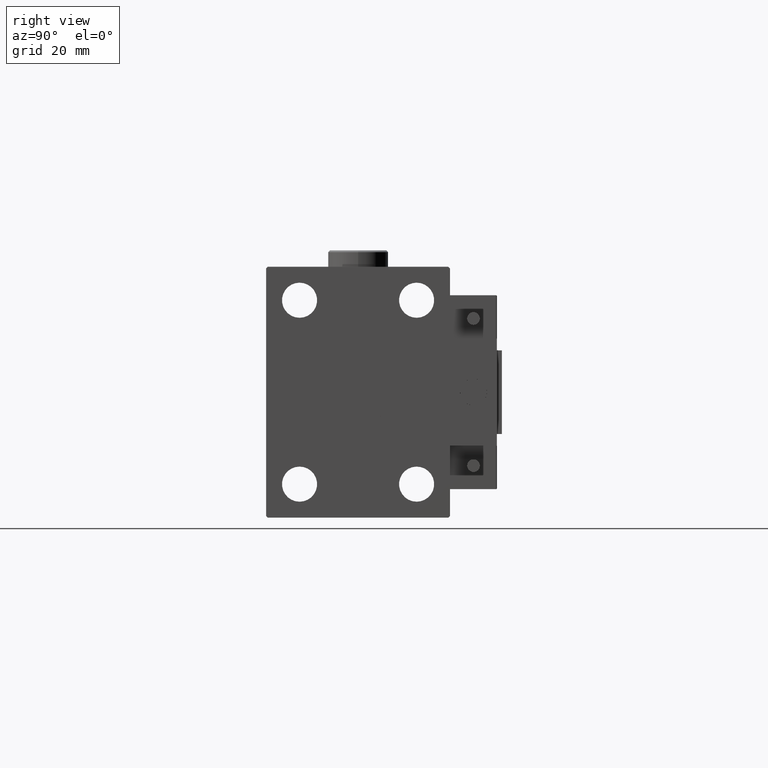
[diagram: clean part render]
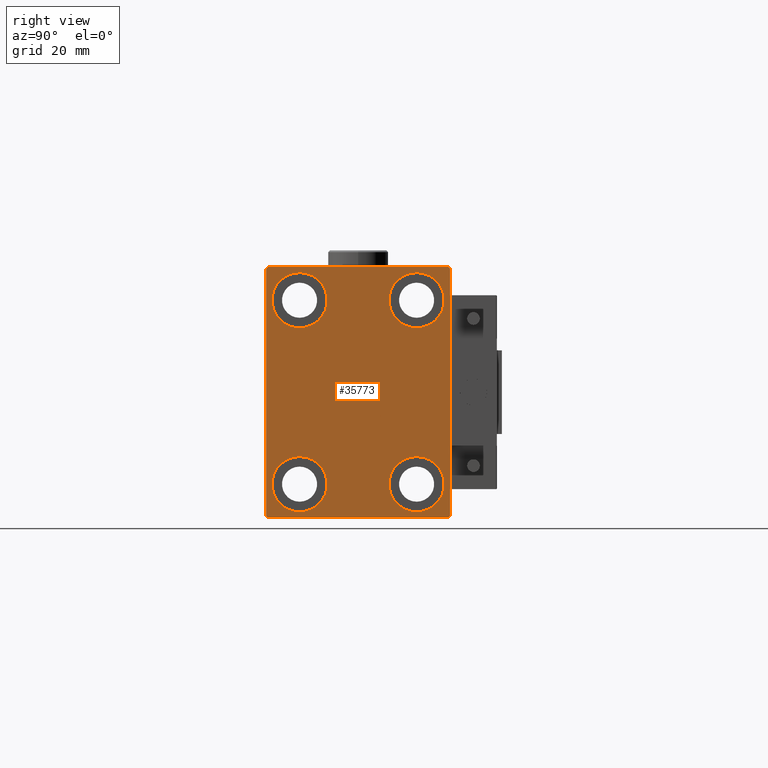
[diagram: same view with one face highlighted and labeled with its STEP entity id]
A machine part, right view. The second image highlights one B-rep face of the part: STEP entity #35773.
In plain terms, the highlighted planar face has unit normal (1, 0, 0).
Its self-contained STEP definition (entity closure, byte-faithful):
#100 = VERTEX_POINT ( 'NONE', #27171 ) ;
#151 = EDGE_CURVE ( 'NONE', #29995, #11162, #40310, .T. ) ;
#279 = DIRECTION ( 'NONE',  ( 0.000000000000000000, 0.000000000000000000, 1.000000000000000000 ) ) ;
#964 = VERTEX_POINT ( 'NONE', #47185 ) ;
#1415 = DIRECTION ( 'NONE',  ( 0.000000000000000000, 1.000000000000000000, 0.000000000000000000 ) ) ;
#1444 = ORIENTED_EDGE ( 'NONE', *, *, #19061, .T. ) ;
#1695 = AXIS2_PLACEMENT_3D ( 'NONE', #39116, #33170, #30351 ) ;
#2394 = CIRCLE ( 'NONE', #33927, 8.249999999999992895 ) ;
#2591 = VECTOR ( 'NONE', #33118, 1000.000000000000114 ) ;
#2593 = DIRECTION ( 'NONE',  ( 0.000000000000000000, -9.251858538542970348E-17, 1.000000000000000000 ) ) ;
#3353 = CARTESIAN_POINT ( 'NONE',  ( 65.00000000000000000, -17.50000000000000355, -27.50000000000000355 ) ) ;
#3519 = CARTESIAN_POINT ( 'NONE',  ( 65.00000000000000000, 17.49999999999999645, -27.50000000000000355 ) ) ;
#3557 = CARTESIAN_POINT ( 'NONE',  ( 65.00000000000000000, -17.50000000000000355, -19.25000000000000355 ) ) ;
#4406 = DIRECTION ( 'NONE',  ( 0.000000000000000000, 0.000000000000000000, 1.000000000000000000 ) ) ;
#4490 = FACE_BOUND ( 'NONE', #46812, .T. ) ;
#5020 = CARTESIAN_POINT ( 'NONE',  ( 65.00000000000000000, 0.000000000000000000, 0.000000000000000000 ) ) ;
#6458 = CIRCLE ( 'NONE', #27489, 8.250000000000000000 ) ;
#6524 = CIRCLE ( 'NONE', #52069, 8.250000000000000000 ) ;
#6875 = AXIS2_PLACEMENT_3D ( 'NONE', #11172, #19675, #31491 ) ;
#6967 = VERTEX_POINT ( 'NONE', #36545 ) ;
#7273 = CIRCLE ( 'NONE', #37946, 8.250000000000000000 ) ;
#7817 = CARTESIAN_POINT ( 'NONE',  ( 65.00000000000000000, 27.49999999999999645, 37.50000000000000711 ) ) ;
#8013 = DIRECTION ( 'NONE',  ( 0.000000000000000000, 0.000000000000000000, 1.000000000000000000 ) ) ;
#8962 = EDGE_CURVE ( 'NONE', #12217, #50672, #28788, .T. ) ;
#9055 = DIRECTION ( 'NONE',  ( -1.000000000000000000, -0.000000000000000000, -0.000000000000000000 ) ) ;
#9580 = LINE ( 'NONE', #25775, #23724 ) ;
#9935 = LINE ( 'NONE', #30255, #42887 ) ;
#10099 = EDGE_CURVE ( 'NONE', #100, #51855, #42862, .T. ) ;
#10569 = LINE ( 'NONE', #26774, #24045 ) ;
#10688 = CARTESIAN_POINT ( 'NONE',  ( 65.00000000000000000, -27.50000000000000355, 37.50000000000000000 ) ) ;
#10857 = EDGE_LOOP ( 'NONE', ( #29290, #37271 ) ) ;
#10941 = CARTESIAN_POINT ( 'NONE',  ( 65.00000000000000000, -27.50000000000000355, 37.00000000000001421 ) ) ;
#11162 = VERTEX_POINT ( 'NONE', #50641 ) ;
#11172 = CARTESIAN_POINT ( 'NONE',  ( 65.00000000000000000, 17.50000000000000355, 27.49999999999999645 ) ) ;
#11228 = ORIENTED_EDGE ( 'NONE', *, *, #41027, .T. ) ;
#12217 = VERTEX_POINT ( 'NONE', #33189 ) ;
#12705 = PLANE ( 'NONE',  #31945 ) ;
#13099 = LINE ( 'NONE', #13626, #20767 ) ;
#13176 = ORIENTED_EDGE ( 'NONE', *, *, #23214, .T. ) ;
#13227 = CARTESIAN_POINT ( 'NONE',  ( 65.00000000000000000, 32.25000000000019185, 32.24999999999975131 ) ) ;
#13321 = DIRECTION ( 'NONE',  ( 0.000000000000000000, 0.000000000000000000, 1.000000000000000000 ) ) ;
#13506 = DIRECTION ( 'NONE',  ( 1.000000000000000000, 0.000000000000000000, 0.000000000000000000 ) ) ;
#13612 = CARTESIAN_POINT ( 'NONE',  ( 65.00000000000000000, -17.49999999999999645, 19.25000000000000000 ) ) ;
#13626 = CARTESIAN_POINT ( 'NONE',  ( 65.00000000000000000, -32.25000000000000000, -32.25000000000000000 ) ) ;
#13783 = DIRECTION ( 'NONE',  ( 0.000000000000000000, 0.000000000000000000, -1.000000000000000000 ) ) ;
#13920 = VERTEX_POINT ( 'NONE', #32208 ) ;
#14164 = VERTEX_POINT ( 'NONE', #47243 ) ;
#15239 = VERTEX_POINT ( 'NONE', #43162 ) ;
#15725 = CARTESIAN_POINT ( 'NONE',  ( 65.00000000000000000, 17.49999999999999645, -19.25000000000000355 ) ) ;
#16000 = EDGE_CURVE ( 'NONE', #38686, #14164, #17119, .T. ) ;
#16381 = LINE ( 'NONE', #19696, #2591 ) ;
#16830 = EDGE_CURVE ( 'NONE', #964, #15239, #9580, .T. ) ;
#17119 = LINE ( 'NONE', #7817, #18419 ) ;
#17604 = DIRECTION ( 'NONE',  ( -0.000000000000000000, -0.7071067811865426878, 0.7071067811865524577 ) ) ;
#18419 = VECTOR ( 'NONE', #41537, 1000.000000000000000 ) ;
#18575 = VERTEX_POINT ( 'NONE', #3557 ) ;
#18647 = ORIENTED_EDGE ( 'NONE', *, *, #41582, .T. ) ;
#19061 = EDGE_CURVE ( 'NONE', #18575, #6967, #7273, .T. ) ;
#19675 = DIRECTION ( 'NONE',  ( -1.000000000000000000, -0.000000000000000000, -0.000000000000000000 ) ) ;
#19696 = CARTESIAN_POINT ( 'NONE',  ( 65.00000000000000000, -32.25000000000000711, 32.25000000000000711 ) ) ;
#20767 = VECTOR ( 'NONE', #29300, 1000.000000000000114 ) ;
#21226 = FACE_OUTER_BOUND ( 'NONE', #40676, .T. ) ;
#21693 = ORIENTED_EDGE ( 'NONE', *, *, #29650, .T. ) ;
#21773 = EDGE_CURVE ( 'NONE', #15239, #13920, #10569, .T. ) ;
#22880 = EDGE_CURVE ( 'NONE', #23051, #964, #9935, .T. ) ;
#23051 = VERTEX_POINT ( 'NONE', #43449 ) ;
#23214 = EDGE_CURVE ( 'NONE', #13920, #38686, #29168, .T. ) ;
#23724 = VECTOR ( 'NONE', #26325, 1000.000000000000114 ) ;
#24045 = VECTOR ( 'NONE', #2593, 1000.000000000000000 ) ;
#24851 = CARTESIAN_POINT ( 'NONE',  ( 65.00000000000000000, 27.00000000000001066, 37.50000000000000711 ) ) ;
#25775 = CARTESIAN_POINT ( 'NONE',  ( 65.00000000000000000, 32.25000000000000000, -32.25000000000000000 ) ) ;
#25812 = VECTOR ( 'NONE', #32082, 1000.000000000000000 ) ;
#26325 = DIRECTION ( 'NONE',  ( -0.000000000000000000, 0.7071067811865474617, 0.7071067811865474617 ) ) ;
#26774 = CARTESIAN_POINT ( 'NONE',  ( 65.00000000000000000, 27.50000000000000355, -37.50000000000000000 ) ) ;
#26955 = ORIENTED_EDGE ( 'NONE', *, *, #22880, .T. ) ;
#27171 = CARTESIAN_POINT ( 'NONE',  ( 65.00000000000000000, -17.49999999999999645, 35.74999999999999289 ) ) ;
#27489 = AXIS2_PLACEMENT_3D ( 'NONE', #41705, #9055, #4406 ) ;
#28590 = ORIENTED_EDGE ( 'NONE', *, *, #43146, .T. ) ;
#28788 = CIRCLE ( 'NONE', #6875, 8.249999999999992895 ) ;
#29168 = LINE ( 'NONE', #13227, #33258 ) ;
#29290 = ORIENTED_EDGE ( 'NONE', *, *, #8962, .T. ) ;
#29300 = DIRECTION ( 'NONE',  ( -0.000000000000000000, 0.7071067811865474617, -0.7071067811865474617 ) ) ;
#29650 = EDGE_CURVE ( 'NONE', #47782, #41115, #6458, .T. ) ;
#29782 = CARTESIAN_POINT ( 'NONE',  ( 65.00000000000000000, 17.50000000000000355, 27.49999999999999645 ) ) ;
#29995 = VERTEX_POINT ( 'NONE', #10941 ) ;
#30255 = CARTESIAN_POINT ( 'NONE',  ( 65.00000000000000000, -27.50000000000000355, -37.50000000000000000 ) ) ;
#30351 = DIRECTION ( 'NONE',  ( 0.000000000000000000, 0.000000000000000000, 1.000000000000000000 ) ) ;
#30524 = CIRCLE ( 'NONE', #39298, 8.250000000000000000 ) ;
#30665 = ORIENTED_EDGE ( 'NONE', *, *, #21773, .T. ) ;
#31183 = EDGE_CURVE ( 'NONE', #6967, #18575, #6524, .T. ) ;
#31291 = CARTESIAN_POINT ( 'NONE',  ( 65.00000000000000000, 17.50000000000000355, 35.74999999999999289 ) ) ;
#31491 = DIRECTION ( 'NONE',  ( 0.000000000000000000, 0.000000000000000000, 1.000000000000000000 ) ) ;
#31792 = DIRECTION ( 'NONE',  ( 0.000000000000000000, 0.000000000000000000, 1.000000000000000000 ) ) ;
#31945 = AXIS2_PLACEMENT_3D ( 'NONE', #5020, #13506, #13783 ) ;
#32082 = DIRECTION ( 'NONE',  ( 0.000000000000000000, 0.000000000000000000, -1.000000000000000000 ) ) ;
#32208 = CARTESIAN_POINT ( 'NONE',  ( 65.00000000000000000, 27.49999999999999645, 37.00000000000001421 ) ) ;
#33118 = DIRECTION ( 'NONE',  ( 0.000000000000000000, -0.7071067811865474617, -0.7071067811865474617 ) ) ;
#33170 = DIRECTION ( 'NONE',  ( -1.000000000000000000, -0.000000000000000000, -0.000000000000000000 ) ) ;
#33189 = CARTESIAN_POINT ( 'NONE',  ( 65.00000000000000000, 17.50000000000000355, 19.25000000000000000 ) ) ;
#33258 = VECTOR ( 'NONE', #17604, 1000.000000000000000 ) ;
#33561 = FACE_BOUND ( 'NONE', #10857, .T. ) ;
#33927 = AXIS2_PLACEMENT_3D ( 'NONE', #47170, #37870, #279 ) ;
#34720 = CARTESIAN_POINT ( 'NONE',  ( 65.00000000000000000, -17.50000000000000355, -27.50000000000000355 ) ) ;
#35773 = ADVANCED_FACE ( 'NONE', ( #4490, #50289, #33561, #43138, #21226 ), #12705, .T. ) ;
#35834 = AXIS2_PLACEMENT_3D ( 'NONE', #29782, #54198, #46220 ) ;
#36545 = CARTESIAN_POINT ( 'NONE',  ( 65.00000000000000000, -17.50000000000000355, -35.75000000000000711 ) ) ;
#37271 = ORIENTED_EDGE ( 'NONE', *, *, #47489, .T. ) ;
#37870 = DIRECTION ( 'NONE',  ( -1.000000000000000000, -0.000000000000000000, -0.000000000000000000 ) ) ;
#37946 = AXIS2_PLACEMENT_3D ( 'NONE', #3353, #41469, #8013 ) ;
#38292 = DIRECTION ( 'NONE',  ( -1.000000000000000000, -0.000000000000000000, -0.000000000000000000 ) ) ;
#38686 = VERTEX_POINT ( 'NONE', #24851 ) ;
#39116 = CARTESIAN_POINT ( 'NONE',  ( 65.00000000000000000, -17.49999999999999645, 27.49999999999999645 ) ) ;
#39298 = AXIS2_PLACEMENT_3D ( 'NONE', #3519, #52640, #31792 ) ;
#40310 = LINE ( 'NONE', #10688, #25812 ) ;
#40676 = EDGE_LOOP ( 'NONE', ( #47883, #43075, #42730, #11228, #26955, #48595, #30665, #13176 ) ) ;
#41027 = EDGE_CURVE ( 'NONE', #11162, #23051, #13099, .T. ) ;
#41115 = VERTEX_POINT ( 'NONE', #15725 ) ;
#41469 = DIRECTION ( 'NONE',  ( -1.000000000000000000, -0.000000000000000000, -0.000000000000000000 ) ) ;
#41537 = DIRECTION ( 'NONE',  ( 0.000000000000000000, -1.000000000000000000, -1.261617073437677999E-16 ) ) ;
#41582 = EDGE_CURVE ( 'NONE', #51855, #100, #2394, .T. ) ;
#41705 = CARTESIAN_POINT ( 'NONE',  ( 65.00000000000000000, 17.49999999999999645, -27.50000000000000355 ) ) ;
#42050 = CARTESIAN_POINT ( 'NONE',  ( 65.00000000000000000, 17.49999999999999645, -35.75000000000000711 ) ) ;
#42730 = ORIENTED_EDGE ( 'NONE', *, *, #151, .T. ) ;
#42862 = CIRCLE ( 'NONE', #1695, 8.249999999999992895 ) ;
#42887 = VECTOR ( 'NONE', #1415, 1000.000000000000000 ) ;
#43075 = ORIENTED_EDGE ( 'NONE', *, *, #46195, .T. ) ;
#43138 = FACE_BOUND ( 'NONE', #47319, .T. ) ;
#43146 = EDGE_CURVE ( 'NONE', #41115, #47782, #30524, .T. ) ;
#43162 = CARTESIAN_POINT ( 'NONE',  ( 65.00000000000000000, 27.50000000000000355, -37.00000000000000000 ) ) ;
#43449 = CARTESIAN_POINT ( 'NONE',  ( 65.00000000000000000, -27.00000000000000355, -37.50000000000000000 ) ) ;
#43707 = CIRCLE ( 'NONE', #35834, 8.249999999999992895 ) ;
#45397 = ORIENTED_EDGE ( 'NONE', *, *, #10099, .T. ) ;
#46195 = EDGE_CURVE ( 'NONE', #14164, #29995, #16381, .T. ) ;
#46220 = DIRECTION ( 'NONE',  ( 0.000000000000000000, 0.000000000000000000, 1.000000000000000000 ) ) ;
#46812 = EDGE_LOOP ( 'NONE', ( #21693, #28590 ) ) ;
#47170 = CARTESIAN_POINT ( 'NONE',  ( 65.00000000000000000, -17.49999999999999645, 27.49999999999999645 ) ) ;
#47185 = CARTESIAN_POINT ( 'NONE',  ( 65.00000000000000000, 27.00000000000000355, -37.50000000000000000 ) ) ;
#47243 = CARTESIAN_POINT ( 'NONE',  ( 65.00000000000000000, -27.00000000000001776, 37.50000000000000000 ) ) ;
#47319 = EDGE_LOOP ( 'NONE', ( #50392, #1444 ) ) ;
#47489 = EDGE_CURVE ( 'NONE', #50672, #12217, #43707, .T. ) ;
#47782 = VERTEX_POINT ( 'NONE', #42050 ) ;
#47883 = ORIENTED_EDGE ( 'NONE', *, *, #16000, .T. ) ;
#48595 = ORIENTED_EDGE ( 'NONE', *, *, #16830, .T. ) ;
#50289 = FACE_BOUND ( 'NONE', #53410, .T. ) ;
#50392 = ORIENTED_EDGE ( 'NONE', *, *, #31183, .T. ) ;
#50641 = CARTESIAN_POINT ( 'NONE',  ( 65.00000000000000000, -27.50000000000000355, -37.00000000000000000 ) ) ;
#50672 = VERTEX_POINT ( 'NONE', #31291 ) ;
#51855 = VERTEX_POINT ( 'NONE', #13612 ) ;
#52069 = AXIS2_PLACEMENT_3D ( 'NONE', #34720, #38292, #13321 ) ;
#52640 = DIRECTION ( 'NONE',  ( -1.000000000000000000, -0.000000000000000000, -0.000000000000000000 ) ) ;
#53410 = EDGE_LOOP ( 'NONE', ( #18647, #45397 ) ) ;
#54198 = DIRECTION ( 'NONE',  ( -1.000000000000000000, -0.000000000000000000, -0.000000000000000000 ) ) ;